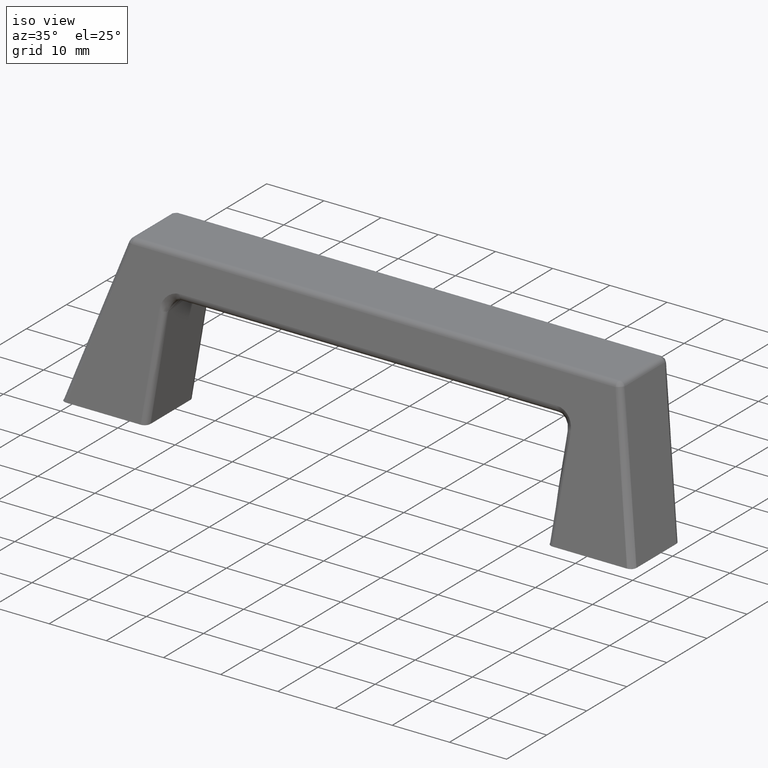
[diagram: clean part render]
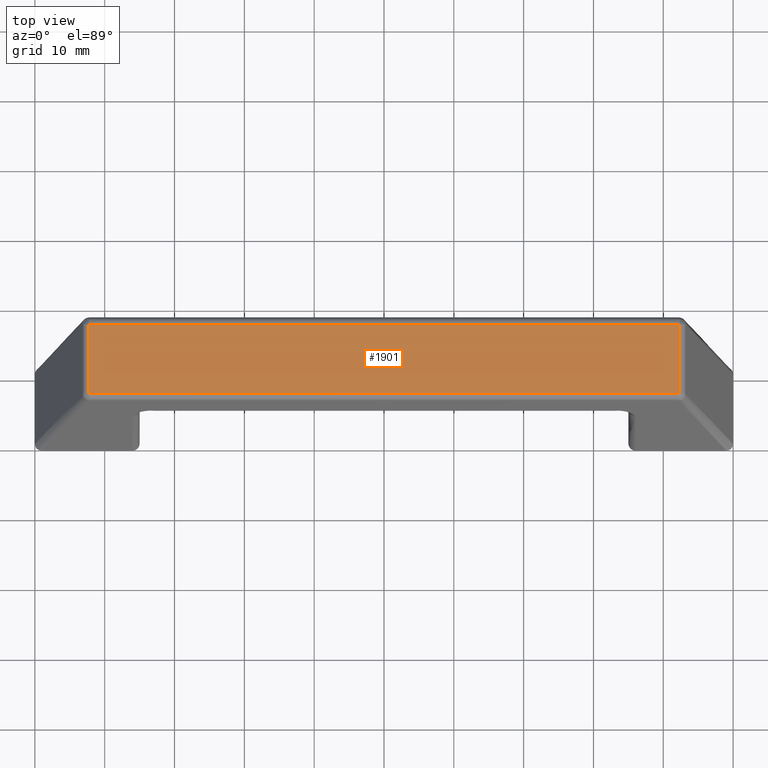
[diagram: tour spotlight — one face highlighted and labeled with its STEP entity id]
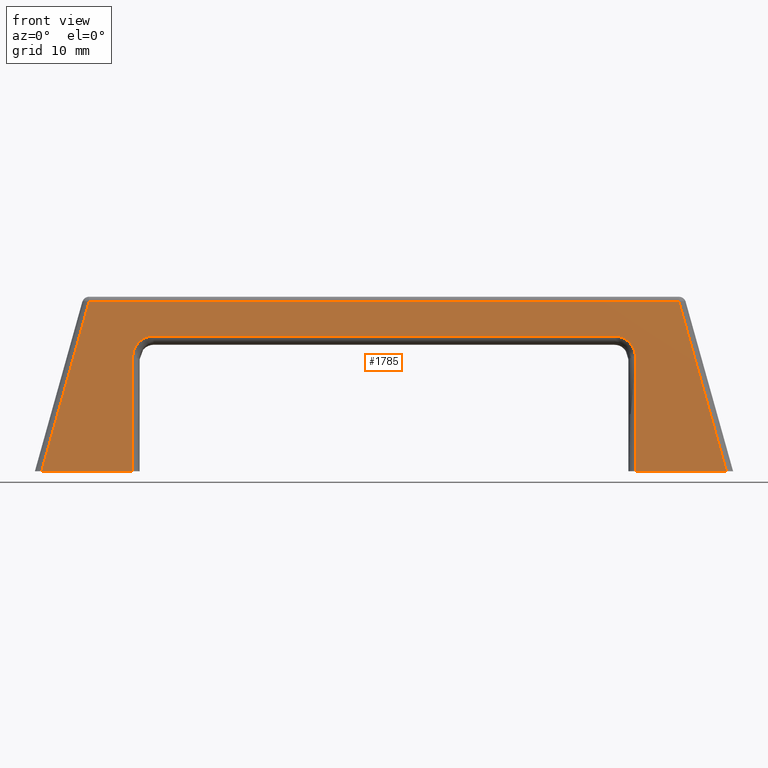
[diagram: tour spotlight — one face highlighted and labeled with its STEP entity id]
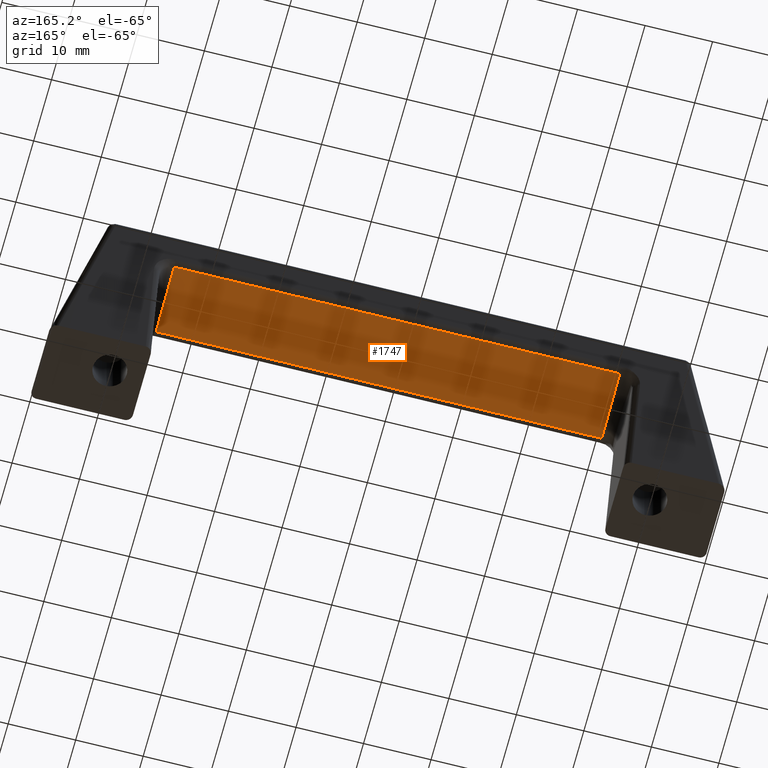
[diagram: tour spotlight — one face highlighted and labeled with its STEP entity id]
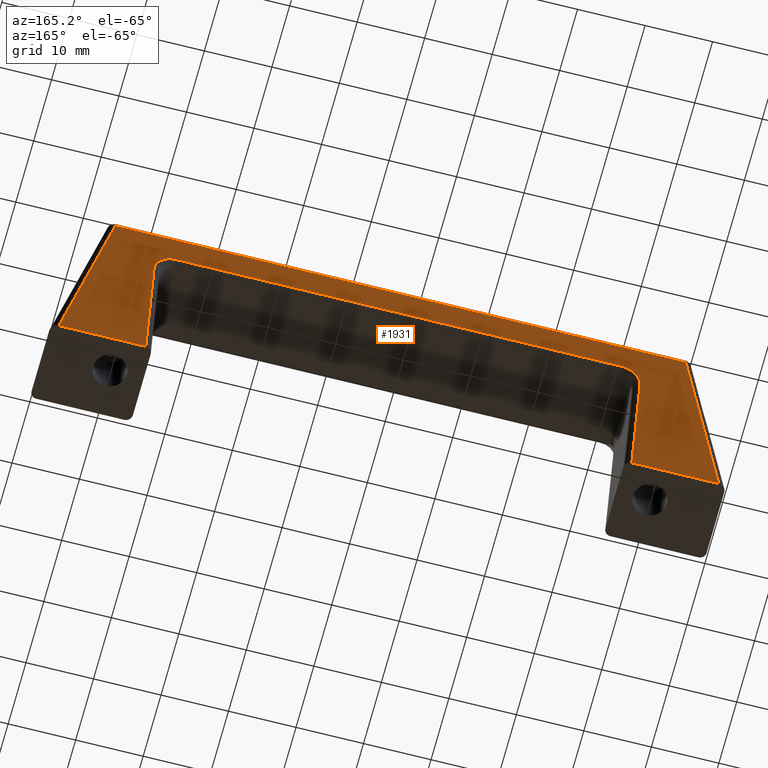
[diagram: tour spotlight — one face highlighted and labeled with its STEP entity id]
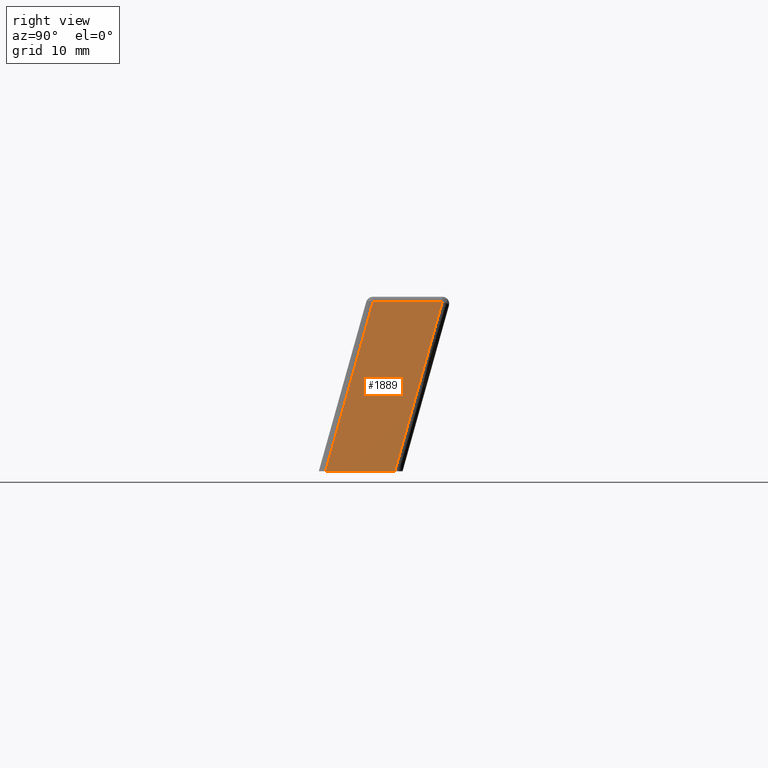
[diagram: tour spotlight — one face highlighted and labeled with its STEP entity id]
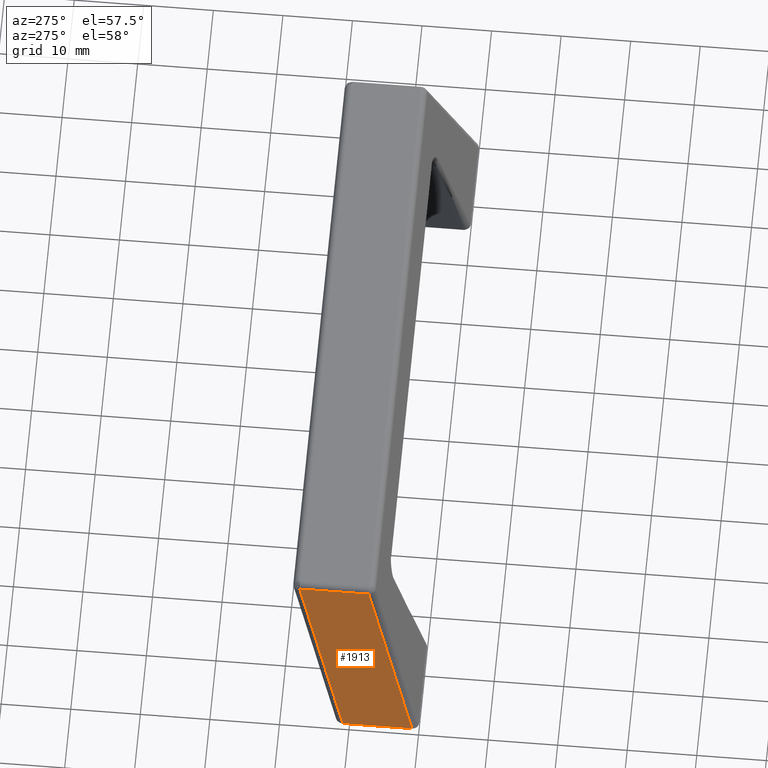
[diagram: tour spotlight — one face highlighted and labeled with its STEP entity id]
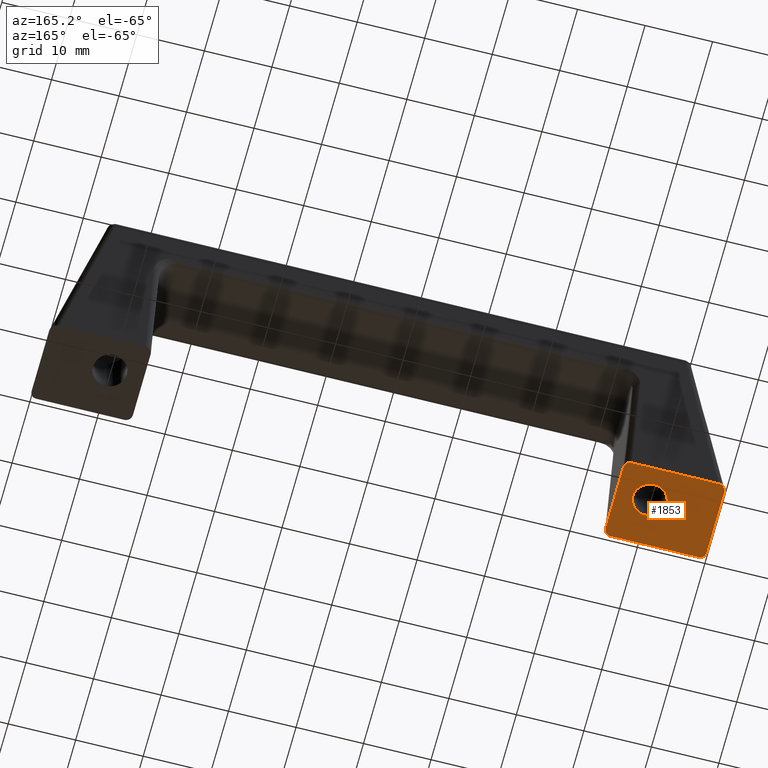
[diagram: tour spotlight — one face highlighted and labeled with its STEP entity id]
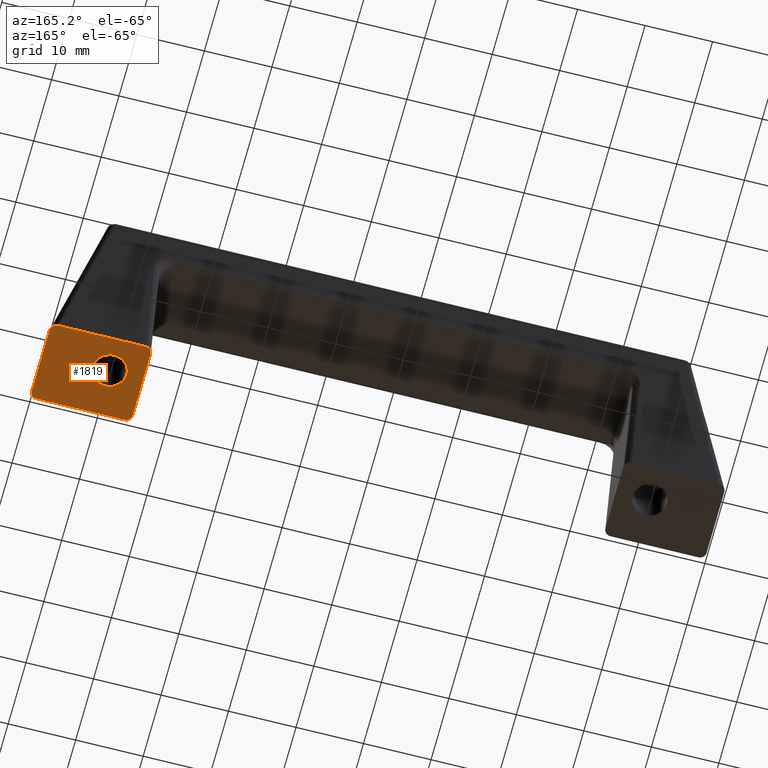
[diagram: tour spotlight — one face highlighted and labeled with its STEP entity id]
A machine part: a face-by-face anatomy tour. The part has 40 B-rep faces; the first image is the clean iso view, then the 8 largest visible faces are spotlighted one at a time (largest first), each with its STEP entity span.

Face 1 — top view, entity #1901. In plain terms, the highlighted face is a freeform B-spline surface patch.
Definition (entity closure, byte-faithful):
#798=CARTESIAN_POINT('',(42.241339607118150,7.757860408281641,25.0));
#799=VERTEX_POINT('',#798);
#843=CARTESIAN_POINT('',(-42.241639599607801,7.757860408281641,25.0));
#844=VERTEX_POINT('',#843);
#866=CARTESIAN_POINT('',(-42.241639599607801,7.757860408281641,25.0));
#867=CARTESIAN_POINT('',(42.241339607118150,7.757860408281641,25.0));
#868=QUASI_UNIFORM_CURVE('',1,(#866,#867),.UNSPECIFIED.,.F.,.U.);
#869=EDGE_CURVE('',#844,#799,#868,.T.);
#1109=CARTESIAN_POINT('',(42.241339607118150,17.681139594775448,25.0));
#1110=VERTEX_POINT('',#1109);
#1159=CARTESIAN_POINT('',(-42.241639599607801,17.681139594775448,25.0));
#1160=VERTEX_POINT('',#1159);
#1176=CARTESIAN_POINT('',(42.241339607118150,17.681139594775448,25.0));
#1177=CARTESIAN_POINT('',(-42.241639599607801,17.681139594775448,25.0));
#1178=QUASI_UNIFORM_CURVE('',1,(#1176,#1177),.UNSPECIFIED.,.F.,.U.);
#1179=EDGE_CURVE('',#1110,#1160,#1178,.T.);
#1692=CARTESIAN_POINT('',(42.241339607118150,7.757860408281641,25.0));
#1693=CARTESIAN_POINT('',(42.241339607118150,17.681139594775448,25.0));
#1694=QUASI_UNIFORM_CURVE('',1,(#1692,#1693),.UNSPECIFIED.,.F.,.U.);
#1695=EDGE_CURVE('',#799,#1110,#1694,.T.);
#1727=CARTESIAN_POINT('',(-42.241639599607801,17.681139594775448,25.0));
#1728=CARTESIAN_POINT('',(-42.241639599607801,7.757860408281641,25.0));
#1729=QUASI_UNIFORM_CURVE('',1,(#1727,#1728),.UNSPECIFIED.,.F.,.U.);
#1730=EDGE_CURVE('',#1160,#844,#1729,.T.);
#1890=CARTESIAN_POINT('',(46.461265539048689,7.262192388144505,25.0));
#1891=CARTESIAN_POINT('',(-46.461560244181477,7.262192388144505,25.0));
#1892=CARTESIAN_POINT('',(46.461265539048689,18.176806905144350,25.0));
#1893=CARTESIAN_POINT('',(-46.461560244181477,18.176806905144350,25.0));
#1894=B_SPLINE_SURFACE_WITH_KNOTS('',1,1,((#1890,#1892),(#1891,#1893)),.UNSPECIFIED.,.F.,.F.,.U.,(2,2),(2,2),(0.0,92.922825783230167),(0.0,10.914614516999841),.UNSPECIFIED.);
#1895=ORIENTED_EDGE('',*,*,#1730,.T.);
#1896=ORIENTED_EDGE('',*,*,#869,.T.);
#1897=ORIENTED_EDGE('',*,*,#1695,.T.);
#1898=ORIENTED_EDGE('',*,*,#1179,.T.);
#1899=EDGE_LOOP('',(#1895,#1896,#1897,#1898));
#1900=FACE_OUTER_BOUND('',#1899,.T.);
#1901=ADVANCED_FACE('',(#1900),#1894,.F.);

Face 2 — front view, entity #1785. In plain terms, the highlighted face is a freeform B-spline surface patch.
Definition (entity closure, byte-faithful):
#438=CARTESIAN_POINT('',(36.0,4.564355173376590,16.302707881949701));
#439=VERTEX_POINT('',#438);
#462=CARTESIAN_POINT('',(36.0,0.0,0.0));
#463=VERTEX_POINT('',#462);
#479=CARTESIAN_POINT('',(36.0,4.564355173376590,16.302707881949701));
#480=CARTESIAN_POINT('',(36.0,0.0,0.0));
#481=QUASI_UNIFORM_CURVE('',1,(#479,#480),.UNSPECIFIED.,.F.,.U.);
#482=EDGE_CURVE('',#439,#463,#481,.T.);
#525=CARTESIAN_POINT('',(33.0,5.426722440661370,19.382862933752651));
#526=VERTEX_POINT('',#525);
#560=CARTESIAN_POINT('',(33.0,5.426722440661370,19.382862933752651));
#561=CARTESIAN_POINT('',(36.000000161180687,5.426722301071741,19.382862435174026));
#562=CARTESIAN_POINT('',(36.0,4.564355173376590,16.302707881949701));
#570=(BOUNDED_CURVE()B_SPLINE_CURVE(2,(#560,#561,#562),.UNSPECIFIED.,.F.,.U.)CURVE()GEOMETRIC_REPRESENTATION_ITEM()QUASI_UNIFORM_CURVE()RATIONAL_B_SPLINE_CURVE((1.0,0.707106819420214,1.0))REPRESENTATION_ITEM(''));
#571=EDGE_CURVE('',#526,#439,#570,.T.);
#590=CARTESIAN_POINT('',(-33.0,5.426722440661370,19.382862933752651));
#591=VERTEX_POINT('',#590);
#615=CARTESIAN_POINT('',(-33.0,5.426722440661370,19.382862933752651));
#616=CARTESIAN_POINT('',(33.0,5.426722440661370,19.382862933752651));
#617=QUASI_UNIFORM_CURVE('',1,(#615,#616),.UNSPECIFIED.,.F.,.U.);
#618=EDGE_CURVE('',#591,#526,#617,.T.);
#661=CARTESIAN_POINT('',(-36.0,4.564355173376590,16.302707881949701));
#662=VERTEX_POINT('',#661);
#692=CARTESIAN_POINT('',(-36.000000000000007,4.564355173376590,16.302707881949701));
#693=CARTESIAN_POINT('',(-36.000000000000014,4.921559421809484,17.578549987831401));
#694=CARTESIAN_POINT('',(-35.121320215158661,5.174140952856568,18.480706538017230));
#695=CARTESIAN_POINT('',(-34.242640430317330,5.426722483903653,19.382863088203045));
#696=CARTESIAN_POINT('',(-33.0,5.426722440661370,19.382862933752651));
#704=(BOUNDED_CURVE()B_SPLINE_CURVE(2,(#692,#693,#694,#695,#696),.UNSPECIFIED.,.F.,.U.)B_SPLINE_CURVE_WITH_KNOTS((3,2,3),(0.0,0.500000000000000,1.0),.UNSPECIFIED.)CURVE()GEOMETRIC_REPRESENTATION_ITEM()RATIONAL_B_SPLINE_CURVE((1.0,0.923879520929603,1.0,0.923879520929603,1.0))REPRESENTATION_ITEM(''));
#705=EDGE_CURVE('',#662,#591,#704,.T.);
#726=CARTESIAN_POINT('',(-36.0,0.0,0.0));
#727=VERTEX_POINT('',#726);
#749=CARTESIAN_POINT('',(-36.0,0.0,0.0));
#750=CARTESIAN_POINT('',(-36.0,4.564355173376590,16.302707881949701));
#751=QUASI_UNIFORM_CURVE('',1,(#749,#750),.UNSPECIFIED.,.F.,.U.);
#752=EDGE_CURVE('',#727,#662,#751,.T.);
#781=CARTESIAN_POINT('',(42.241339607118150,6.794890207625129,24.269607849751200));
#782=VERTEX_POINT('',#781);
#845=CARTESIAN_POINT('',(-42.241639599607801,6.794890207625129,24.269607849751200));
#846=VERTEX_POINT('',#845);
#860=CARTESIAN_POINT('',(42.241339607118150,6.794890207625129,24.269607849751200));
#861=CARTESIAN_POINT('',(-42.241639599607801,6.794890207625129,24.269607849751200));
#862=QUASI_UNIFORM_CURVE('',1,(#860,#861),.UNSPECIFIED.,.F.,.U.);
#863=EDGE_CURVE('',#782,#846,#862,.T.);
#890=CARTESIAN_POINT('',(49.037229798585500,0.0,0.0));
#891=VERTEX_POINT('',#890);
#911=CARTESIAN_POINT('',(49.037229798585500,0.0,0.0));
#912=CARTESIAN_POINT('',(42.241339607118150,6.794890207625129,24.269607849751200));
#913=QUASI_UNIFORM_CURVE('',1,(#911,#912),.UNSPECIFIED.,.F.,.U.);
#914=EDGE_CURVE('',#891,#782,#913,.T.);
#997=CARTESIAN_POINT('',(-49.037029799153999,0.0,0.0));
#998=VERTEX_POINT('',#997);
#1012=CARTESIAN_POINT('',(-42.241639599607801,6.794890207625129,24.269607849751200));
#1013=CARTESIAN_POINT('',(-49.037029799153999,0.0,0.0));
#1014=QUASI_UNIFORM_CURVE('',1,(#1012,#1013),.UNSPECIFIED.,.F.,.U.);
#1015=EDGE_CURVE('',#846,#998,#1014,.T.);
#1760=CARTESIAN_POINT('',(-53.935838875974142,7.134294896540617,25.481874486981361));
#1761=CARTESIAN_POINT('',(-53.935838875974142,-0.339404931919713,-1.212267505178957));
#1762=CARTESIAN_POINT('',(53.936041505962280,7.134294896540617,25.481874486981351));
#1763=CARTESIAN_POINT('',(53.936041505962280,-0.339404931919713,-1.212267505178957));
#1764=B_SPLINE_SURFACE_WITH_KNOTS('',1,1,((#1760,#1762),(#1761,#1763)),.UNSPECIFIED.,.F.,.F.,.U.,(2,2),(2,2),(0.0,27.720631410982410),(0.0,107.871880381936410),.UNSPECIFIED.);
#1765=ORIENTED_EDGE('',*,*,#571,.T.);
#1766=ORIENTED_EDGE('',*,*,#482,.T.);
#1767=CARTESIAN_POINT('',(49.037229798585500,0.0,0.0));
#1768=CARTESIAN_POINT('',(36.0,0.0,0.0));
#1769=QUASI_UNIFORM_CURVE('',1,(#1767,#1768),.UNSPECIFIED.,.F.,.U.);
#1770=EDGE_CURVE('',#891,#463,#1769,.T.);
#1771=ORIENTED_EDGE('',*,*,#1770,.F.);
#1772=ORIENTED_EDGE('',*,*,#914,.T.);
#1773=ORIENTED_EDGE('',*,*,#863,.T.);
#1774=ORIENTED_EDGE('',*,*,#1015,.T.);
#1775=CARTESIAN_POINT('',(-36.0,0.0,0.0));
#1776=CARTESIAN_POINT('',(-49.037029799153999,0.0,0.0));
#1777=QUASI_UNIFORM_CURVE('',1,(#1775,#1776),.UNSPECIFIED.,.F.,.U.);
#1778=EDGE_CURVE('',#727,#998,#1777,.T.);
#1779=ORIENTED_EDGE('',*,*,#1778,.F.);
#1780=ORIENTED_EDGE('',*,*,#752,.T.);
#1781=ORIENTED_EDGE('',*,*,#705,.T.);
#1782=ORIENTED_EDGE('',*,*,#618,.T.);
#1783=EDGE_LOOP('',(#1765,#1766,#1771,#1772,#1773,#1774,#1779,#1780,#1781,#1782));
#1784=FACE_OUTER_BOUND('',#1783,.T.);
#1785=ADVANCED_FACE('',(#1784),#1764,.T.);

Face 3 — auxiliary view, entity #1747. In plain terms, the highlighted face is a freeform B-spline surface patch.
Definition (entity closure, byte-faithful):
#527=CARTESIAN_POINT('',(33.0,6.470856375732581,18.116554302314299));
#528=VERTEX_POINT('',#527);
#592=CARTESIAN_POINT('',(-33.0,6.470856375732581,18.116554302314299));
#593=VERTEX_POINT('',#592);
#609=CARTESIAN_POINT('',(33.0,6.470856375732581,18.116554302314299));
#610=CARTESIAN_POINT('',(-33.0,6.470856375732581,18.116554302314299));
#611=QUASI_UNIFORM_CURVE('',1,(#609,#610),.UNSPECIFIED.,.F.,.U.);
#612=EDGE_CURVE('',#528,#593,#611,.T.);
#1396=CARTESIAN_POINT('',(-33.0,16.625622738584099,18.943481275043400));
#1397=VERTEX_POINT('',#1396);
#1457=CARTESIAN_POINT('',(33.0,16.625622738584099,18.943481275043400));
#1458=VERTEX_POINT('',#1457);
#1472=CARTESIAN_POINT('',(-33.0,16.625622738584099,18.943481275043400));
#1473=CARTESIAN_POINT('',(33.0,16.625622738584099,18.943481275043400));
#1474=QUASI_UNIFORM_CURVE('',1,(#1472,#1473),.UNSPECIFIED.,.F.,.U.);
#1475=EDGE_CURVE('',#1397,#1458,#1474,.T.);
#1640=CARTESIAN_POINT('',(33.0,16.625622738584099,18.943481275043400));
#1641=CARTESIAN_POINT('',(33.0,6.470856375732581,18.116554302314299));
#1642=QUASI_UNIFORM_CURVE('',1,(#1640,#1641),.UNSPECIFIED.,.F.,.U.);
#1643=EDGE_CURVE('',#1458,#528,#1642,.T.);
#1663=CARTESIAN_POINT('',(-33.0,6.470856375732581,18.116554302314299));
#1664=CARTESIAN_POINT('',(-33.0,16.625622738584099,18.943481275043400));
#1665=QUASI_UNIFORM_CURVE('',1,(#1663,#1664),.UNSPECIFIED.,.F.,.U.);
#1666=EDGE_CURVE('',#593,#1397,#1665,.T.);
#1736=CARTESIAN_POINT('',(-36.296699872079188,17.132852345469811,18.984786198102501));
#1737=CARTESIAN_POINT('',(-36.296699872079188,5.963625588567943,18.075249283142270));
#1738=CARTESIAN_POINT('',(36.296701642337133,17.132852345469811,18.984786198102501));
#1739=CARTESIAN_POINT('',(36.296701642337133,5.963625588567943,18.075249283142270));
#1740=B_SPLINE_SURFACE_WITH_KNOTS('',1,1,((#1736,#1738),(#1737,#1739)),.UNSPECIFIED.,.F.,.F.,.U.,(2,2),(2,2),(0.0,11.206198452051790),(0.0,72.593401514416314),.UNSPECIFIED.);
#1741=ORIENTED_EDGE('',*,*,#1643,.T.);
#1742=ORIENTED_EDGE('',*,*,#612,.T.);
#1743=ORIENTED_EDGE('',*,*,#1666,.T.);
#1744=ORIENTED_EDGE('',*,*,#1475,.T.);
#1745=EDGE_LOOP('',(#1741,#1742,#1743,#1744));
#1746=FACE_OUTER_BOUND('',#1745,.T.);
#1747=ADVANCED_FACE('',(#1746),#1740,.F.);

Face 4 — auxiliary view, entity #1931. In plain terms, the highlighted face is a freeform B-spline surface patch.
Definition (entity closure, byte-faithful):
#1034=CARTESIAN_POINT('',(48.886238549014003,12.000000000000220,0.0));
#1035=VERTEX_POINT('',#1034);
#1053=CARTESIAN_POINT('',(42.241339607118150,18.644107828933251,23.730385126517302));
#1054=VERTEX_POINT('',#1053);
#1055=CARTESIAN_POINT('',(42.241339607118150,18.644107828933251,23.730385126517302));
#1056=CARTESIAN_POINT('',(48.886238549014003,12.000000000000220,0.0));
#1057=QUASI_UNIFORM_CURVE('',1,(#1055,#1056),.UNSPECIFIED.,.F.,.U.);
#1058=EDGE_CURVE('',#1054,#1035,#1057,.T.);
#1157=CARTESIAN_POINT('',(-42.241639599607801,18.644107828933251,23.730385126517302));
#1158=VERTEX_POINT('',#1157);
#1182=CARTESIAN_POINT('',(-42.241639599607801,18.644107828933251,23.730385126517302));
#1183=CARTESIAN_POINT('',(42.241339607118150,18.644107828933251,23.730385126517302));
#1184=QUASI_UNIFORM_CURVE('',1,(#1182,#1183),.UNSPECIFIED.,.F.,.U.);
#1185=EDGE_CURVE('',#1158,#1054,#1184,.T.);
#1264=CARTESIAN_POINT('',(-48.886049658414898,12.000000000000220,0.0));
#1265=VERTEX_POINT('',#1264);
#1287=CARTESIAN_POINT('',(-48.886049658414898,12.000000000000220,0.0));
#1288=CARTESIAN_POINT('',(-42.241639599607801,18.644107828933251,23.730385126517302));
#1289=QUASI_UNIFORM_CURVE('',1,(#1287,#1288),.UNSPECIFIED.,.F.,.U.);
#1290=EDGE_CURVE('',#1265,#1158,#1289,.T.);
#1309=CARTESIAN_POINT('',(-36.0,12.000000000000220,0.0));
#1310=VERTEX_POINT('',#1309);
#1326=CARTESIAN_POINT('',(-36.0,16.645035178579398,16.590410112535199));
#1327=VERTEX_POINT('',#1326);
#1328=CARTESIAN_POINT('',(-36.0,16.645035178579398,16.590410112535199));
#1329=CARTESIAN_POINT('',(-36.0,12.000000000000220,0.0));
#1330=QUASI_UNIFORM_CURVE('',1,(#1328,#1329),.UNSPECIFIED.,.F.,.U.);
#1331=EDGE_CURVE('',#1327,#1310,#1330,.T.);
#1394=CARTESIAN_POINT('',(-33.0,17.507427238327200,19.670567183247901));
#1395=VERTEX_POINT('',#1394);
#1425=CARTESIAN_POINT('',(-33.0,17.507427238327189,19.670567183247879));
#1426=CARTESIAN_POINT('',(-36.000000000000014,17.507427238327196,19.670567183247879));
#1427=CARTESIAN_POINT('',(-36.000000000000007,16.645035178579398,16.590410112535199));
#1435=(BOUNDED_CURVE()B_SPLINE_CURVE(2,(#1425,#1426,#1427),.UNSPECIFIED.,.F.,.U.)CURVE()GEOMETRIC_REPRESENTATION_ITEM()QUASI_UNIFORM_CURVE()RATIONAL_B_SPLINE_CURVE((1.0,0.707106781186548,1.0))REPRESENTATION_ITEM(''));
#1436=EDGE_CURVE('',#1395,#1327,#1435,.T.);
#1455=CARTESIAN_POINT('',(33.0,17.507427238327200,19.670567183247901));
#1456=VERTEX_POINT('',#1455);
#1478=CARTESIAN_POINT('',(33.0,17.507427238327200,19.670567183247901));
#1479=CARTESIAN_POINT('',(-33.0,17.507427238327200,19.670567183247901));
#1480=QUASI_UNIFORM_CURVE('',1,(#1478,#1479),.UNSPECIFIED.,.F.,.U.);
#1481=EDGE_CURVE('',#1456,#1395,#1480,.T.);
#1524=CARTESIAN_POINT('',(36.0,16.645035178579398,16.590410112535249));
#1525=VERTEX_POINT('',#1524);
#1557=CARTESIAN_POINT('',(36.0,16.645035178579398,16.590410112535249));
#1558=CARTESIAN_POINT('',(36.000000161180687,17.507427127781792,19.670566788419126));
#1559=CARTESIAN_POINT('',(33.0,17.507427238327200,19.670567183247901));
#1567=(BOUNDED_CURVE()B_SPLINE_CURVE(2,(#1557,#1558,#1559),.UNSPECIFIED.,.F.,.U.)CURVE()GEOMETRIC_REPRESENTATION_ITEM()QUASI_UNIFORM_CURVE()RATIONAL_B_SPLINE_CURVE((1.0,0.707106807511331,1.0))REPRESENTATION_ITEM(''));
#1568=EDGE_CURVE('',#1525,#1456,#1567,.T.);
#1589=CARTESIAN_POINT('',(36.0,12.000000000000220,0.0));
#1590=VERTEX_POINT('',#1589);
#1612=CARTESIAN_POINT('',(36.0,12.000000000000220,0.0));
#1613=CARTESIAN_POINT('',(36.0,16.645035178579398,16.590410112535249));
#1614=QUASI_UNIFORM_CURVE('',1,(#1612,#1613),.UNSPECIFIED.,.F.,.U.);
#1615=EDGE_CURVE('',#1590,#1525,#1614,.T.);
#1805=CARTESIAN_POINT('',(36.0,12.000000000000220,0.0));
#1806=CARTESIAN_POINT('',(48.886238549014003,12.000000000000220,0.0));
#1807=QUASI_UNIFORM_CURVE('',1,(#1805,#1806),.UNSPECIFIED.,.F.,.U.);
#1808=EDGE_CURVE('',#1590,#1035,#1807,.T.);
#1839=CARTESIAN_POINT('',(-48.886049658414898,12.000000000000220,0.0));
#1840=CARTESIAN_POINT('',(-36.0,12.000000000000220,0.0));
#1841=QUASI_UNIFORM_CURVE('',1,(#1839,#1840),.UNSPECIFIED.,.F.,.U.);
#1842=EDGE_CURVE('',#1265,#1310,#1841,.T.);
#1914=CARTESIAN_POINT('',(-53.769777100506893,18.975980939740790,24.915717594828859));
#1915=CARTESIAN_POINT('',(-53.769777100506893,11.668126651580900,-1.185333316976275));
#1916=CARTESIAN_POINT('',(53.769966865258361,18.975980939740790,24.915717594828859));
#1917=CARTESIAN_POINT('',(53.769966865258361,11.668126651580900,-1.185333316976276));
#1918=B_SPLINE_SURFACE_WITH_KNOTS('',1,1,((#1914,#1916),(#1915,#1917)),.UNSPECIFIED.,.F.,.F.,.U.,(2,2),(2,2),(0.0,27.104789115534931),(0.0,107.539743965765200),.UNSPECIFIED.);
#1919=ORIENTED_EDGE('',*,*,#1436,.T.);
#1920=ORIENTED_EDGE('',*,*,#1331,.T.);
#1921=ORIENTED_EDGE('',*,*,#1842,.F.);
#1922=ORIENTED_EDGE('',*,*,#1290,.T.);
#1923=ORIENTED_EDGE('',*,*,#1185,.T.);
#1924=ORIENTED_EDGE('',*,*,#1058,.T.);
#1925=ORIENTED_EDGE('',*,*,#1808,.F.);
#1926=ORIENTED_EDGE('',*,*,#1615,.T.);
#1927=ORIENTED_EDGE('',*,*,#1568,.T.);
#1928=ORIENTED_EDGE('',*,*,#1481,.T.);
#1929=EDGE_LOOP('',(#1919,#1920,#1921,#1922,#1923,#1924,#1925,#1926,#1927,#1928));
#1930=FACE_OUTER_BOUND('',#1929,.T.);
#1931=ADVANCED_FACE('',(#1930),#1918,.F.);

Face 5 — right view, entity #1889. In plain terms, the highlighted face is a freeform B-spline surface patch.
Definition (entity closure, byte-faithful):
#783=CARTESIAN_POINT('',(43.204299505967001,7.757860408281641,24.269644642463000));
#784=VERTEX_POINT('',#783);
#888=CARTESIAN_POINT('',(50.000200000000000,0.962959899606819,0.0));
#889=VERTEX_POINT('',#888);
#905=CARTESIAN_POINT('',(43.204299505967001,7.757860408281641,24.269644642463000));
#906=CARTESIAN_POINT('',(50.000200000000000,0.962959899606819,0.0));
#907=QUASI_UNIFORM_CURVE('',1,(#905,#906),.UNSPECIFIED.,.F.,.U.);
#908=EDGE_CURVE('',#784,#889,#907,.T.);
#1036=CARTESIAN_POINT('',(50.000200000000000,10.886048191297681,0.0));
#1037=VERTEX_POINT('',#1036);
#1060=CARTESIAN_POINT('',(43.204299505967001,17.681139594775448,24.269644642463000));
#1061=VERTEX_POINT('',#1060);
#1077=CARTESIAN_POINT('',(50.000200000000000,10.886048191297681,0.0));
#1078=CARTESIAN_POINT('',(43.204299505967001,17.681139594775448,24.269644642463000));
#1079=QUASI_UNIFORM_CURVE('',1,(#1077,#1078),.UNSPECIFIED.,.F.,.U.);
#1080=EDGE_CURVE('',#1037,#1061,#1079,.T.);
#1698=CARTESIAN_POINT('',(43.204299505967001,17.681139594775448,24.269644642463000));
#1699=CARTESIAN_POINT('',(43.204299505967001,7.757860408281641,24.269644642463000));
#1700=QUASI_UNIFORM_CURVE('',1,(#1698,#1699),.UNSPECIFIED.,.F.,.U.);
#1701=EDGE_CURVE('',#1061,#784,#1700,.T.);
#1791=CARTESIAN_POINT('',(50.000200000000000,10.886048191297681,0.0));
#1792=CARTESIAN_POINT('',(50.000200000000000,0.962959899606819,0.0));
#1793=QUASI_UNIFORM_CURVE('',1,(#1791,#1792),.UNSPECIFIED.,.F.,.U.);
#1794=EDGE_CURVE('',#1037,#889,#1793,.T.);
#1878=CARTESIAN_POINT('',(50.339655064635238,0.127886915965302,-1.212268160491439));
#1879=CARTESIAN_POINT('',(42.864844623611909,0.127886915965302,25.481912151991811));
#1880=CARTESIAN_POINT('',(50.339655064635238,18.516211831056090,-1.212268160491439));
#1881=CARTESIAN_POINT('',(42.864844623611909,18.516211831056090,25.481912151991811));
#1882=B_SPLINE_SURFACE_WITH_KNOTS('',1,1,((#1878,#1880),(#1879,#1881)),.UNSPECIFIED.,.F.,.F.,.U.,(2,2),(2,2),(0.0,27.720967762410460),(0.0,18.388324915090791),.UNSPECIFIED.);
#1883=ORIENTED_EDGE('',*,*,#1701,.T.);
#1884=ORIENTED_EDGE('',*,*,#908,.T.);
#1885=ORIENTED_EDGE('',*,*,#1794,.F.);
#1886=ORIENTED_EDGE('',*,*,#1080,.T.);
#1887=EDGE_LOOP('',(#1883,#1884,#1885,#1886));
#1888=FACE_OUTER_BOUND('',#1887,.T.);
#1889=ADVANCED_FACE('',(#1888),#1882,.F.);

Face 6 — auxiliary view, entity #1913. In plain terms, the highlighted face is a freeform B-spline surface patch.
Definition (entity closure, byte-faithful):
#943=CARTESIAN_POINT('',(-43.204604649508703,7.757860408281641,24.269626246254699));
#944=VERTEX_POINT('',#943);
#990=CARTESIAN_POINT('',(-50.0,0.962965050090414,0.0));
#991=VERTEX_POINT('',#990);
#992=CARTESIAN_POINT('',(-50.0,0.962965050090414,0.0));
#993=CARTESIAN_POINT('',(-43.204604649508703,7.757860408281641,24.269626246254699));
#994=QUASI_UNIFORM_CURVE('',1,(#992,#993),.UNSPECIFIED.,.F.,.U.);
#995=EDGE_CURVE('',#991,#944,#994,.T.);
#1214=CARTESIAN_POINT('',(-43.204604649508703,17.681139594775601,24.269626246254699));
#1215=VERTEX_POINT('',#1214);
#1262=CARTESIAN_POINT('',(-50.0,10.886053341926161,0.0));
#1263=VERTEX_POINT('',#1262);
#1281=CARTESIAN_POINT('',(-43.204604649508703,17.681139594775601,24.269626246254699));
#1282=CARTESIAN_POINT('',(-50.0,10.886053341926161,0.0));
#1283=QUASI_UNIFORM_CURVE('',1,(#1281,#1282),.UNSPECIFIED.,.F.,.U.);
#1284=EDGE_CURVE('',#1215,#1263,#1283,.T.);
#1721=CARTESIAN_POINT('',(-43.204604649508703,7.757860408281641,24.269626246254699));
#1722=CARTESIAN_POINT('',(-43.204604649508703,17.681139594775601,24.269626246254699));
#1723=QUASI_UNIFORM_CURVE('',1,(#1721,#1722),.UNSPECIFIED.,.F.,.U.);
#1724=EDGE_CURVE('',#944,#1215,#1723,.T.);
#1833=CARTESIAN_POINT('',(-50.0,10.886053341926161,0.0));
#1834=CARTESIAN_POINT('',(-50.0,0.962965050090414,0.0));
#1835=QUASI_UNIFORM_CURVE('',1,(#1833,#1834),.UNSPECIFIED.,.F.,.U.);
#1836=EDGE_CURVE('',#1263,#991,#1835,.T.);
#1902=CARTESIAN_POINT('',(-42.865174601132153,0.127892323715519,25.481894258041770));
#1903=CARTESIAN_POINT('',(-50.339430169887713,0.127892323715519,-1.212268445761797));
#1904=CARTESIAN_POINT('',(-42.865174601132153,18.516211573789850,25.481894258041770));
#1905=CARTESIAN_POINT('',(-50.339430169887713,18.516211573789850,-1.212268445761797));
#1906=B_SPLINE_SURFACE_WITH_KNOTS('',1,1,((#1902,#1904),(#1903,#1905)),.UNSPECIFIED.,.F.,.F.,.U.,(2,2),(2,2),(0.0,27.720801192682199),(0.0,18.388319250074328),.UNSPECIFIED.);
#1907=ORIENTED_EDGE('',*,*,#1836,.T.);
#1908=ORIENTED_EDGE('',*,*,#995,.T.);
#1909=ORIENTED_EDGE('',*,*,#1724,.T.);
#1910=ORIENTED_EDGE('',*,*,#1284,.T.);
#1911=EDGE_LOOP('',(#1907,#1908,#1909,#1910));
#1912=FACE_OUTER_BOUND('',#1911,.T.);
#1913=ADVANCED_FACE('',(#1912),#1906,.F.);

Face 7 — auxiliary view, entity #1853. In plain terms, the highlighted face is a freeform B-spline surface patch.
Definition (entity closure, byte-faithful):
#267=CARTESIAN_POINT('',(-40.295085586814082,9.482523815888701,4.259142E-017));
#268=VERTEX_POINT('',#267);
#274=CARTESIAN_POINT('',(-37.500000000000000,7.0,0.0));
#275=VERTEX_POINT('',#274);
#276=CARTESIAN_POINT('',(-40.295085586814082,9.482523815888701,4.259142E-017));
#277=CARTESIAN_POINT('',(-40.148060299303772,9.500000000000000,0.0));
#278=CARTESIAN_POINT('',(-40.0,9.500000000000000,0.0));
#279=CARTESIAN_POINT('',(-37.499999999999993,9.500000000000000,0.0));
#280=CARTESIAN_POINT('',(-37.500000000000000,7.0,0.0));
#288=(BOUNDED_CURVE()B_SPLINE_CURVE(2,(#276,#277,#278,#279,#280),.UNSPECIFIED.,.F.,.U.)B_SPLINE_CURVE_WITH_KNOTS((3,2,3),(0.229562473492201,0.250000000000000,0.500000000000000),.UNSPECIFIED.)CURVE()GEOMETRIC_REPRESENTATION_ITEM()RATIONAL_B_SPLINE_CURVE((0.956026754141937,0.976055948306182,1.0,0.707106781186548,1.0))REPRESENTATION_ITEM(''));
#289=EDGE_CURVE('',#268,#275,#288,.T.);
#291=CARTESIAN_POINT('',(-39.847378650582307,4.504663003980841,4.163336E-017));
#292=VERTEX_POINT('',#291);
#293=CARTESIAN_POINT('',(-37.500000000000000,7.0,0.0));
#294=CARTESIAN_POINT('',(-37.500000000000000,4.648234833832084,0.0));
#295=CARTESIAN_POINT('',(-39.847378650582314,4.504663003980841,4.163336E-017));
#303=(BOUNDED_CURVE()B_SPLINE_CURVE(2,(#293,#294,#295),.UNSPECIFIED.,.F.,.U.)B_SPLINE_CURVE_WITH_KNOTS((3,3),(0.500000000000000,0.739332962161682),.UNSPECIFIED.)CURVE()GEOMETRIC_REPRESENTATION_ITEM()RATIONAL_B_SPLINE_CURVE((1.0,0.719603993377226,0.976072041501134))REPRESENTATION_ITEM(''));
#304=EDGE_CURVE('',#275,#292,#303,.T.);
#378=CARTESIAN_POINT('',(-42.500000000000000,7.0,0.0));
#379=VERTEX_POINT('',#378);
#380=CARTESIAN_POINT('',(-39.847378650582314,4.504663003980842,4.163336E-017));
#381=CARTESIAN_POINT('',(-39.923618091171356,4.500000000000001,0.0));
#382=CARTESIAN_POINT('',(-40.0,4.500000000000001,0.0));
#383=CARTESIAN_POINT('',(-42.500000000000000,4.500000000000002,0.0));
#384=CARTESIAN_POINT('',(-42.500000000000000,7.0,0.0));
#392=(BOUNDED_CURVE()B_SPLINE_CURVE(2,(#380,#381,#382,#383,#384),.UNSPECIFIED.,.F.,.U.)B_SPLINE_CURVE_WITH_KNOTS((3,2,3),(0.739332962161682,0.750000000000000,1.0),.UNSPECIFIED.)CURVE()GEOMETRIC_REPRESENTATION_ITEM()RATIONAL_B_SPLINE_CURVE((0.976072041501132,0.987502787809320,1.0,0.707106781186548,1.0))REPRESENTATION_ITEM(''));
#393=EDGE_CURVE('',#292,#379,#392,.T.);
#395=CARTESIAN_POINT('',(-42.500000000000000,7.0,0.0));
#396=CARTESIAN_POINT('',(-42.500000000000000,9.220436314568246,0.0));
#397=CARTESIAN_POINT('',(-40.295085586814082,9.482523815888701,4.259142E-017));
#405=(BOUNDED_CURVE()B_SPLINE_CURVE(2,(#395,#396,#397),.UNSPECIFIED.,.F.,.U.)B_SPLINE_CURVE_WITH_KNOTS((3,3),(0.0,0.229562473492201),.UNSPECIFIED.)CURVE()GEOMETRIC_REPRESENTATION_ITEM()RATIONAL_B_SPLINE_CURVE((1.0,0.731050832880365,0.956026754141937))REPRESENTATION_ITEM(''));
#406=EDGE_CURVE('',#379,#268,#405,.T.);
#724=CARTESIAN_POINT('',(-35.0,1.038453733374300,0.0));
#725=VERTEX_POINT('',#724);
#726=CARTESIAN_POINT('',(-36.0,0.0,0.0));
#727=VERTEX_POINT('',#726);
#728=CARTESIAN_POINT('',(-34.999999999999993,1.038453733374301,0.0));
#729=CARTESIAN_POINT('',(-34.999999999999986,0.608312113113689,0.0));
#730=CARTESIAN_POINT('',(-35.292893218813447,0.304156056556846,0.0));
#731=CARTESIAN_POINT('',(-35.585786437626901,0.0,0.0));
#732=CARTESIAN_POINT('',(-36.0,0.0,0.0));
#740=(BOUNDED_CURVE()B_SPLINE_CURVE(2,(#728,#729,#730,#731,#732),.UNSPECIFIED.,.F.,.U.)B_SPLINE_CURVE_WITH_KNOTS((3,2,3),(0.0,0.500000000000000,1.0),.UNSPECIFIED.)CURVE()GEOMETRIC_REPRESENTATION_ITEM()RATIONAL_B_SPLINE_CURVE((1.0,0.923879532511301,1.0,0.923879532511301,1.0))REPRESENTATION_ITEM(''));
#741=EDGE_CURVE('',#725,#727,#740,.T.);
#990=CARTESIAN_POINT('',(-50.0,0.962965050090414,0.0));
#991=VERTEX_POINT('',#990);
#997=CARTESIAN_POINT('',(-49.037029799153999,0.0,0.0));
#998=VERTEX_POINT('',#997);
#999=CARTESIAN_POINT('',(-49.037029799154013,5.854692E-015,0.0));
#1000=CARTESIAN_POINT('',(-50.000000000000092,3.599551E-014,0.0));
#1001=CARTESIAN_POINT('',(-50.000000000000028,0.962965050090441,0.0));
#1009=(BOUNDED_CURVE()B_SPLINE_CURVE(2,(#999,#1000,#1001),.UNSPECIFIED.,.F.,.U.)CURVE()GEOMETRIC_REPRESENTATION_ITEM()QUASI_UNIFORM_CURVE()RATIONAL_B_SPLINE_CURVE((1.0,0.732356932270456,1.0))REPRESENTATION_ITEM(''));
#1010=EDGE_CURVE('',#998,#991,#1009,.T.);
#1262=CARTESIAN_POINT('',(-50.0,10.886053341926161,0.0));
#1263=VERTEX_POINT('',#1262);
#1264=CARTESIAN_POINT('',(-48.886049658414898,12.000000000000220,0.0));
#1265=VERTEX_POINT('',#1264);
#1266=CARTESIAN_POINT('',(-50.000000000000028,10.886053341926189,2.775558E-014));
#1267=CARTESIAN_POINT('',(-50.000000000000028,11.337299516180066,2.775558E-014));
#1268=CARTESIAN_POINT('',(-49.668648662406987,11.668649758090220,2.775558E-014));
#1269=CARTESIAN_POINT('',(-49.337297324813960,12.000000000000380,2.775558E-014));
#1270=CARTESIAN_POINT('',(-48.886049658414812,12.000000000000311,2.775558E-014));
#1278=(BOUNDED_CURVE()B_SPLINE_CURVE(2,(#1266,#1267,#1268,#1269,#1270),.UNSPECIFIED.,.F.,.U.)B_SPLINE_CURVE_WITH_KNOTS((3,2,3),(0.0,0.500000000000000,1.0),.UNSPECIFIED.)CURVE()GEOMETRIC_REPRESENTATION_ITEM()RATIONAL_B_SPLINE_CURVE((1.0,0.916766121390836,1.0,0.916766121390836,1.0))REPRESENTATION_ITEM(''));
#1279=EDGE_CURVE('',#1263,#1265,#1278,.T.);
#1309=CARTESIAN_POINT('',(-36.0,12.000000000000220,0.0));
#1310=VERTEX_POINT('',#1309);
#1311=CARTESIAN_POINT('',(-35.0,10.961544145976500,0.0));
#1312=VERTEX_POINT('',#1311);
#1313=CARTESIAN_POINT('',(-36.0,12.000000000000171,0.0));
#1314=CARTESIAN_POINT('',(-35.0,12.000000000000171,0.0));
#1315=CARTESIAN_POINT('',(-34.999999999999993,10.961544145976500,0.0));
#1323=(BOUNDED_CURVE()B_SPLINE_CURVE(2,(#1313,#1314,#1315),.UNSPECIFIED.,.F.,.U.)CURVE()GEOMETRIC_REPRESENTATION_ITEM()QUASI_UNIFORM_CURVE()RATIONAL_B_SPLINE_CURVE((1.0,0.707106781186515,1.0))REPRESENTATION_ITEM(''));
#1324=EDGE_CURVE('',#1310,#1312,#1323,.T.);
#1775=CARTESIAN_POINT('',(-36.0,0.0,0.0));
#1776=CARTESIAN_POINT('',(-49.037029799153999,0.0,0.0));
#1777=QUASI_UNIFORM_CURVE('',1,(#1775,#1776),.UNSPECIFIED.,.F.,.U.);
#1778=EDGE_CURVE('',#727,#998,#1777,.T.);
#1820=CARTESIAN_POINT('',(-50.749249970927089,-0.599399976741682,0.0));
#1821=CARTESIAN_POINT('',(-34.250749626741559,-0.599399976741682,0.0));
#1822=CARTESIAN_POINT('',(-50.749249970927089,12.599400298606991,0.0));
#1823=CARTESIAN_POINT('',(-34.250749626741559,12.599400298606991,0.0));
#1824=B_SPLINE_SURFACE_WITH_KNOTS('',1,1,((#1820,#1822),(#1821,#1823)),.UNSPECIFIED.,.F.,.F.,.U.,(2,2),(2,2),(0.0,16.498500344185530),(0.0,13.198800275348670),.UNSPECIFIED.);
#1825=CARTESIAN_POINT('',(-35.0,10.961544145976500,0.0));
#1826=CARTESIAN_POINT('',(-35.0,1.038453733374300,0.0));
#1827=QUASI_UNIFORM_CURVE('',1,(#1825,#1826),.UNSPECIFIED.,.F.,.U.);
#1828=EDGE_CURVE('',#1312,#725,#1827,.T.);
#1829=ORIENTED_EDGE('',*,*,#1828,.T.);
#1830=ORIENTED_EDGE('',*,*,#741,.T.);
#1831=ORIENTED_EDGE('',*,*,#1778,.T.);
#1832=ORIENTED_EDGE('',*,*,#1010,.T.);
#1833=CARTESIAN_POINT('',(-50.0,10.886053341926161,0.0));
#1834=CARTESIAN_POINT('',(-50.0,0.962965050090414,0.0));
#1835=QUASI_UNIFORM_CURVE('',1,(#1833,#1834),.UNSPECIFIED.,.F.,.U.);
#1836=EDGE_CURVE('',#1263,#991,#1835,.T.);
#1837=ORIENTED_EDGE('',*,*,#1836,.F.);
#1838=ORIENTED_EDGE('',*,*,#1279,.T.);
#1839=CARTESIAN_POINT('',(-48.886049658414898,12.000000000000220,0.0));
#1840=CARTESIAN_POINT('',(-36.0,12.000000000000220,0.0));
#1841=QUASI_UNIFORM_CURVE('',1,(#1839,#1840),.UNSPECIFIED.,.F.,.U.);
#1842=EDGE_CURVE('',#1265,#1310,#1841,.T.);
#1843=ORIENTED_EDGE('',*,*,#1842,.T.);
#1844=ORIENTED_EDGE('',*,*,#1324,.T.);
#1845=EDGE_LOOP('',(#1829,#1830,#1831,#1832,#1837,#1838,#1843,#1844));
#1846=FACE_OUTER_BOUND('',#1845,.T.);
#1847=ORIENTED_EDGE('',*,*,#304,.F.);
#1848=ORIENTED_EDGE('',*,*,#289,.F.);
#1849=ORIENTED_EDGE('',*,*,#406,.F.);
#1850=ORIENTED_EDGE('',*,*,#393,.F.);
#1851=EDGE_LOOP('',(#1847,#1848,#1849,#1850));
#1852=FACE_BOUND('',#1851,.T.);
#1853=ADVANCED_FACE('',(#1846,#1852),#1824,.F.);

Face 8 — auxiliary view, entity #1819. In plain terms, the highlighted face is a freeform B-spline surface patch.
Definition (entity closure, byte-faithful):
#79=CARTESIAN_POINT('',(40.196147739581512,9.492293334312208,4.163336E-017));
#80=VERTEX_POINT('',#79);
#86=CARTESIAN_POINT('',(42.500000000000000,7.0,0.0));
#87=VERTEX_POINT('',#86);
#88=CARTESIAN_POINT('',(42.500000000000000,7.0,0.0));
#89=CARTESIAN_POINT('',(42.499999999999993,9.310976228658328,0.0));
#90=CARTESIAN_POINT('',(40.196147739581505,9.492293334312208,4.163336E-017));
#98=(BOUNDED_CURVE()B_SPLINE_CURVE(2,(#88,#89,#90),.UNSPECIFIED.,.F.,.U.)B_SPLINE_CURVE_WITH_KNOTS((3,3),(0.0,0.236331300596739),.UNSPECIFIED.)CURVE()GEOMETRIC_REPRESENTATION_ITEM()RATIONAL_B_SPLINE_CURVE((1.0,0.723120658647406,0.969723356096629))REPRESENTATION_ITEM(''));
#99=EDGE_CURVE('',#87,#80,#98,.T.);
#101=CARTESIAN_POINT('',(39.803852260418502,4.507706665687792,4.163336E-017));
#102=VERTEX_POINT('',#101);
#103=CARTESIAN_POINT('',(39.803852260418495,4.507706665687792,4.163336E-017));
#104=CARTESIAN_POINT('',(39.901774732217717,4.500000000000000,0.0));
#105=CARTESIAN_POINT('',(40.0,4.500000000000001,0.0));
#106=CARTESIAN_POINT('',(42.500000000000000,4.500000000000002,0.0));
#107=CARTESIAN_POINT('',(42.500000000000000,7.0,0.0));
#115=(BOUNDED_CURVE()B_SPLINE_CURVE(2,(#103,#104,#105,#106,#107),.UNSPECIFIED.,.F.,.U.)B_SPLINE_CURVE_WITH_KNOTS((3,2,3),(0.736331300596740,0.750000000000000,1.0),.UNSPECIFIED.)CURVE()GEOMETRIC_REPRESENTATION_ITEM()RATIONAL_B_SPLINE_CURVE((0.969723356096630,0.983986122539143,1.0,0.707106781186548,1.0))REPRESENTATION_ITEM(''));
#116=EDGE_CURVE('',#102,#87,#115,.T.);
#192=CARTESIAN_POINT('',(37.500000000000000,7.0,0.0));
#193=VERTEX_POINT('',#192);
#194=CARTESIAN_POINT('',(37.500000000000000,7.0,0.0));
#195=CARTESIAN_POINT('',(37.499999999999993,4.689023771341673,0.0));
#196=CARTESIAN_POINT('',(39.803852260418495,4.507706665687792,4.163336E-017));
#204=(BOUNDED_CURVE()B_SPLINE_CURVE(2,(#194,#195,#196),.UNSPECIFIED.,.F.,.U.)B_SPLINE_CURVE_WITH_KNOTS((3,3),(0.500000000000000,0.736331300596739),.UNSPECIFIED.)CURVE()GEOMETRIC_REPRESENTATION_ITEM()RATIONAL_B_SPLINE_CURVE((1.0,0.723120658647406,0.969723356096629))REPRESENTATION_ITEM(''));
#205=EDGE_CURVE('',#193,#102,#204,.T.);
#207=CARTESIAN_POINT('',(40.196147739581512,9.492293334312208,4.163336E-017));
#208=CARTESIAN_POINT('',(40.098225267782297,9.500000000000000,0.0));
#209=CARTESIAN_POINT('',(40.0,9.500000000000000,0.0));
#210=CARTESIAN_POINT('',(37.499999999999993,9.500000000000000,0.0));
#211=CARTESIAN_POINT('',(37.500000000000000,7.0,0.0));
#219=(BOUNDED_CURVE()B_SPLINE_CURVE(2,(#207,#208,#209,#210,#211),.UNSPECIFIED.,.F.,.U.)B_SPLINE_CURVE_WITH_KNOTS((3,2,3),(0.236331300596739,0.250000000000000,0.500000000000000),.UNSPECIFIED.)CURVE()GEOMETRIC_REPRESENTATION_ITEM()RATIONAL_B_SPLINE_CURVE((0.969723356096629,0.983986122539142,1.0,0.707106781186548,1.0))REPRESENTATION_ITEM(''));
#220=EDGE_CURVE('',#80,#193,#219,.T.);
#455=CARTESIAN_POINT('',(35.0,1.038453733374300,0.0));
#456=VERTEX_POINT('',#455);
#462=CARTESIAN_POINT('',(36.0,0.0,0.0));
#463=VERTEX_POINT('',#462);
#464=CARTESIAN_POINT('',(36.0,0.0,0.0));
#465=CARTESIAN_POINT('',(35.585786405259277,0.0,0.0));
#466=CARTESIAN_POINT('',(35.292893179742272,0.304156097130452,0.0));
#467=CARTESIAN_POINT('',(34.999999954225274,0.608312194260903,0.0));
#468=CARTESIAN_POINT('',(35.0,1.038453733374300,0.0));
#476=(BOUNDED_CURVE()B_SPLINE_CURVE(2,(#464,#465,#466,#467,#468),.UNSPECIFIED.,.F.,.U.)B_SPLINE_CURVE_WITH_KNOTS((3,2,3),(0.0,0.500000000000000,1.0),.UNSPECIFIED.)CURVE()GEOMETRIC_REPRESENTATION_ITEM()RATIONAL_B_SPLINE_CURVE((1.0,0.923879521938705,1.0,0.923879521938705,1.0))REPRESENTATION_ITEM(''));
#477=EDGE_CURVE('',#463,#456,#476,.T.);
#888=CARTESIAN_POINT('',(50.000200000000000,0.962959899606819,0.0));
#889=VERTEX_POINT('',#888);
#890=CARTESIAN_POINT('',(49.037229798585500,0.0,0.0));
#891=VERTEX_POINT('',#890);
#892=CARTESIAN_POINT('',(50.000200000000063,0.962959899606766,0.0));
#893=CARTESIAN_POINT('',(50.000200000000014,-6.895526E-014,0.0));
#894=CARTESIAN_POINT('',(49.037229798585457,-3.382711E-014,0.0));
#902=(BOUNDED_CURVE()B_SPLINE_CURVE(2,(#892,#893,#894),.UNSPECIFIED.,.F.,.U.)CURVE()GEOMETRIC_REPRESENTATION_ITEM()QUASI_UNIFORM_CURVE()RATIONAL_B_SPLINE_CURVE((1.0,0.732358625350784,1.0))REPRESENTATION_ITEM(''));
#903=EDGE_CURVE('',#889,#891,#902,.T.);
#1034=CARTESIAN_POINT('',(48.886238549014003,12.000000000000220,0.0));
#1035=VERTEX_POINT('',#1034);
#1036=CARTESIAN_POINT('',(50.000200000000000,10.886048191297681,0.0));
#1037=VERTEX_POINT('',#1036);
#1038=CARTESIAN_POINT('',(48.886238549014003,12.000000000000220,0.0));
#1039=CARTESIAN_POINT('',(49.337489997747852,11.999999999999922,0.0));
#1040=CARTESIAN_POINT('',(49.668844998873908,11.668647867033100,0.0));
#1041=CARTESIAN_POINT('',(50.000199999999964,11.337295734066268,0.0));
#1042=CARTESIAN_POINT('',(50.000199999999950,10.886048191297631,0.0));
#1050=(BOUNDED_CURVE()B_SPLINE_CURVE(2,(#1038,#1039,#1040,#1041,#1042),.UNSPECIFIED.,.F.,.U.)B_SPLINE_CURVE_WITH_KNOTS((3,2,3),(0.0,0.500000000000000,1.0),.UNSPECIFIED.)CURVE()GEOMETRIC_REPRESENTATION_ITEM()RATIONAL_B_SPLINE_CURVE((1.0,0.916765624800740,1.0,0.916765624800740,1.0))REPRESENTATION_ITEM(''));
#1051=EDGE_CURVE('',#1035,#1037,#1050,.T.);
#1587=CARTESIAN_POINT('',(35.0,10.961544145976600,0.0));
#1588=VERTEX_POINT('',#1587);
#1589=CARTESIAN_POINT('',(36.0,12.000000000000220,0.0));
#1590=VERTEX_POINT('',#1589);
#1591=CARTESIAN_POINT('',(34.999999999999993,10.961544145976600,0.0));
#1592=CARTESIAN_POINT('',(34.999999999999993,11.391686770159605,0.0));
#1593=CARTESIAN_POINT('',(35.292893364719340,11.695843473836440,0.0));
#1594=CARTESIAN_POINT('',(35.585786729438695,12.000000177513272,0.0));
#1595=CARTESIAN_POINT('',(36.0,12.000000000000220,0.0));
#1603=(BOUNDED_CURVE()B_SPLINE_CURVE(2,(#1591,#1592,#1593,#1594,#1595),.UNSPECIFIED.,.F.,.U.)B_SPLINE_CURVE_WITH_KNOTS((3,2,3),(0.0,0.500000000000000,1.0),.UNSPECIFIED.)CURVE()GEOMETRIC_REPRESENTATION_ITEM()RATIONAL_B_SPLINE_CURVE((1.0,0.923879493029431,1.0,0.923879493029431,1.0))REPRESENTATION_ITEM(''));
#1604=EDGE_CURVE('',#1588,#1590,#1603,.T.);
#1767=CARTESIAN_POINT('',(49.037229798585500,0.0,0.0));
#1768=CARTESIAN_POINT('',(36.0,0.0,0.0));
#1769=QUASI_UNIFORM_CURVE('',1,(#1767,#1768),.UNSPECIFIED.,.F.,.U.);
#1770=EDGE_CURVE('',#891,#463,#1769,.T.);
#1786=CARTESIAN_POINT('',(34.250740146255801,-0.599399976741683,0.0));
#1787=CARTESIAN_POINT('',(50.749458110285097,-0.599399976741683,0.0));
#1788=CARTESIAN_POINT('',(34.250740146255801,12.599400298606991,0.0));
#1789=CARTESIAN_POINT('',(50.749458110285097,12.599400298606991,0.0));
#1790=B_SPLINE_SURFACE_WITH_KNOTS('',1,1,((#1786,#1788),(#1787,#1789)),.UNSPECIFIED.,.F.,.F.,.U.,(2,2),(2,2),(0.0,16.498717964029300),(0.0,13.198800275348670),.UNSPECIFIED.);
#1791=CARTESIAN_POINT('',(50.000200000000000,10.886048191297681,0.0));
#1792=CARTESIAN_POINT('',(50.000200000000000,0.962959899606819,0.0));
#1793=QUASI_UNIFORM_CURVE('',1,(#1791,#1792),.UNSPECIFIED.,.F.,.U.);
#1794=EDGE_CURVE('',#1037,#889,#1793,.T.);
#1795=ORIENTED_EDGE('',*,*,#1794,.T.);
#1796=ORIENTED_EDGE('',*,*,#903,.T.);
#1797=ORIENTED_EDGE('',*,*,#1770,.T.);
#1798=ORIENTED_EDGE('',*,*,#477,.T.);
#1799=CARTESIAN_POINT('',(35.0,10.961544145976600,0.0));
#1800=CARTESIAN_POINT('',(35.0,1.038453733374300,0.0));
#1801=QUASI_UNIFORM_CURVE('',1,(#1799,#1800),.UNSPECIFIED.,.F.,.U.);
#1802=EDGE_CURVE('',#1588,#456,#1801,.T.);
#1803=ORIENTED_EDGE('',*,*,#1802,.F.);
#1804=ORIENTED_EDGE('',*,*,#1604,.T.);
#1805=CARTESIAN_POINT('',(36.0,12.000000000000220,0.0));
#1806=CARTESIAN_POINT('',(48.886238549014003,12.000000000000220,0.0));
#1807=QUASI_UNIFORM_CURVE('',1,(#1805,#1806),.UNSPECIFIED.,.F.,.U.);
#1808=EDGE_CURVE('',#1590,#1035,#1807,.T.);
#1809=ORIENTED_EDGE('',*,*,#1808,.T.);
#1810=ORIENTED_EDGE('',*,*,#1051,.T.);
#1811=EDGE_LOOP('',(#1795,#1796,#1797,#1798,#1803,#1804,#1809,#1810));
#1812=FACE_OUTER_BOUND('',#1811,.T.);
#1813=ORIENTED_EDGE('',*,*,#205,.T.);
#1814=ORIENTED_EDGE('',*,*,#116,.T.);
#1815=ORIENTED_EDGE('',*,*,#99,.T.);
#1816=ORIENTED_EDGE('',*,*,#220,.T.);
#1817=EDGE_LOOP('',(#1813,#1814,#1815,#1816));
#1818=FACE_BOUND('',#1817,.T.);
#1819=ADVANCED_FACE('',(#1812,#1818),#1790,.F.);